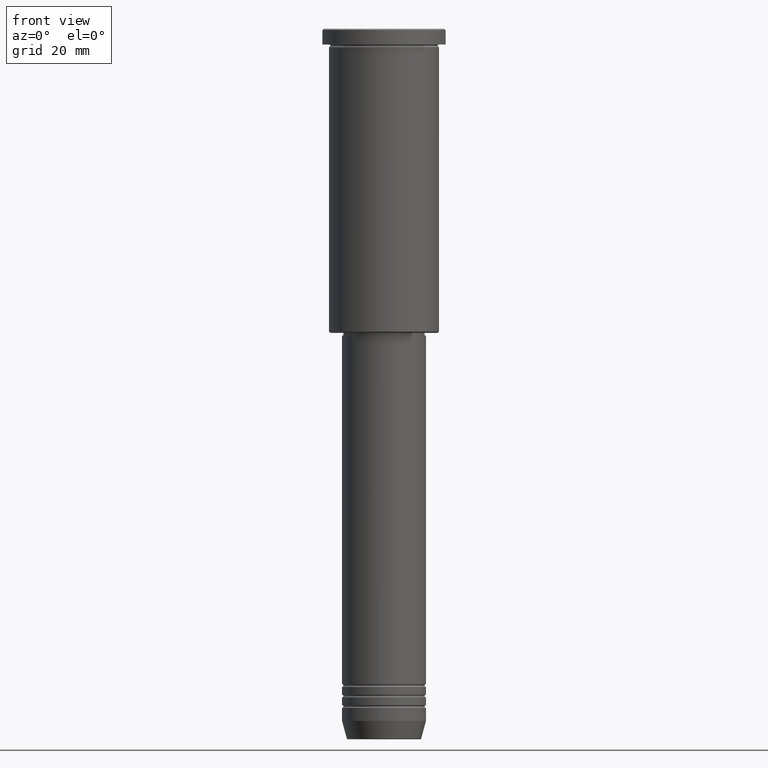
[diagram: clean part render]
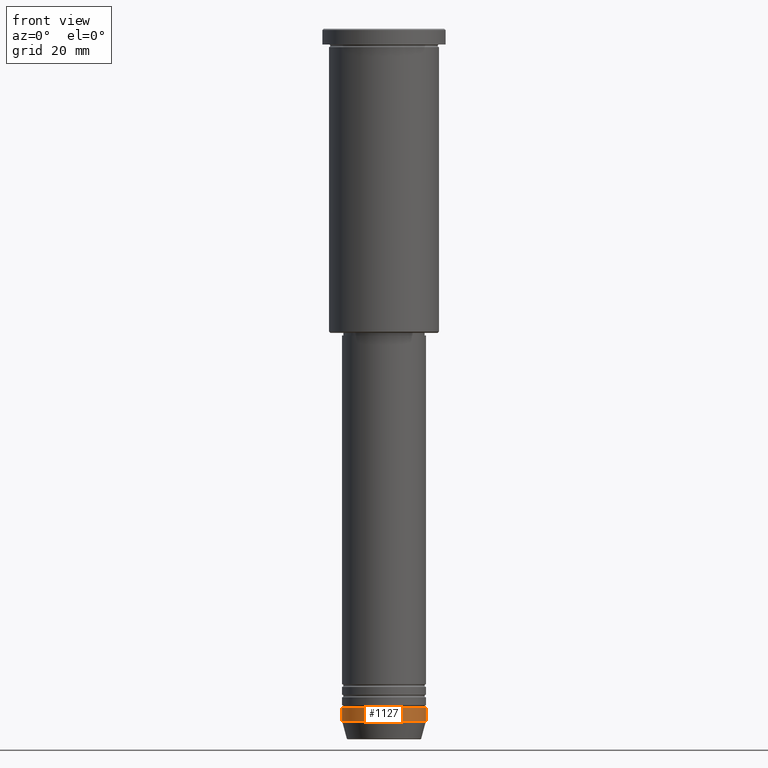
[diagram: same view with one face highlighted and labeled with its STEP entity id]
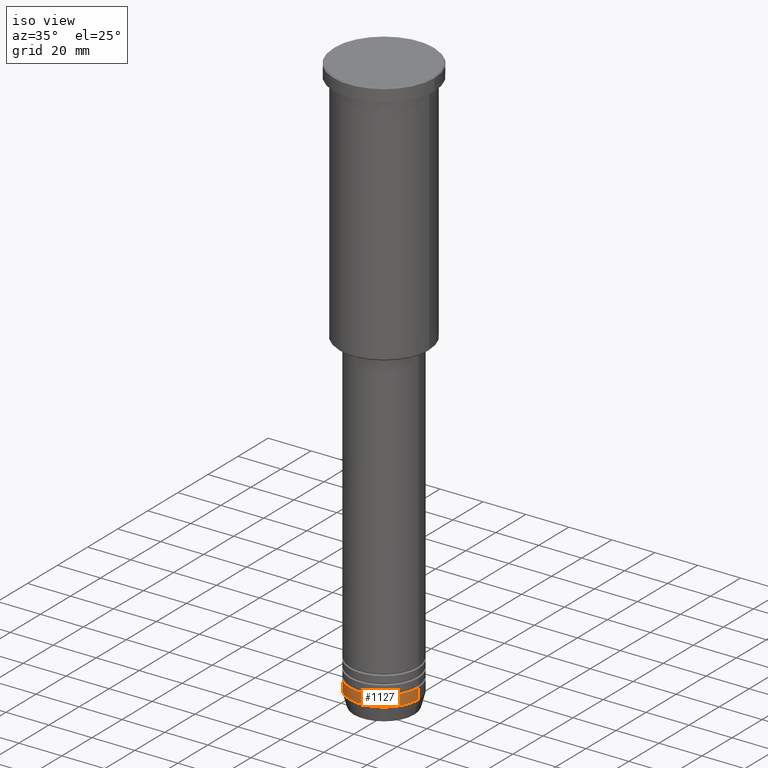
[diagram: same view with one face highlighted and labeled with its STEP entity id]
A machine part, front view. The second image highlights one B-rep face of the part: STEP entity #1127.
A second angle (iso view) of the same face is appended — the face is thin or edge-on in the first view.
In plain terms, the highlighted cylindrical surface (partial cylindrical patch) has radius 16 mm, axis along (-0, -0, 1).
Its self-contained STEP definition (entity closure, byte-faithful):
#5 = AXIS2_PLACEMENT_3D ( 'NONE', #393, #951, #136 ) ;
#66 = CARTESIAN_POINT ( 'NONE',  ( -16.00000000000000000, 1.959434878635765131E-15, 0.000000000000000000 ) ) ;
#100 = CARTESIAN_POINT ( 'NONE',  ( -16.00000000000000000, 1.959434878635765131E-15, -259.0000000000000000 ) ) ;
#136 = DIRECTION ( 'NONE',  ( 1.000000000000000000, 0.000000000000000000, 0.000000000000000000 ) ) ;
#161 = EDGE_CURVE ( 'NONE', #591, #166, #897, .T. ) ;
#163 = VECTOR ( 'NONE', #538, 1000.000000000000000 ) ;
#166 = VERTEX_POINT ( 'NONE', #427 ) ;
#211 = VERTEX_POINT ( 'NONE', #1074 ) ;
#263 = EDGE_CURVE ( 'NONE', #166, #211, #1098, .T. ) ;
#275 = DIRECTION ( 'NONE',  ( -0.000000000000000000, -0.000000000000000000, 1.000000000000000000 ) ) ;
#341 = CARTESIAN_POINT ( 'NONE',  ( 0.000000000000000000, 0.000000000000000000, -264.0000000000000000 ) ) ;
#393 = CARTESIAN_POINT ( 'NONE',  ( 0.000000000000000000, 0.000000000000000000, 0.000000000000000000 ) ) ;
#414 = ORIENTED_EDGE ( 'NONE', *, *, #522, .F. ) ;
#423 = EDGE_LOOP ( 'NONE', ( #414, #1170, #810, #678 ) ) ;
#427 = CARTESIAN_POINT ( 'NONE',  ( 16.00000000000000000, 0.000000000000000000, -264.0000000000000000 ) ) ;
#487 = VECTOR ( 'NONE', #275, 1000.000000000000000 ) ;
#522 = EDGE_CURVE ( 'NONE', #591, #812, #791, .T. ) ;
#538 = DIRECTION ( 'NONE',  ( -0.000000000000000000, -0.000000000000000000, 1.000000000000000000 ) ) ;
#569 = DIRECTION ( 'NONE',  ( -0.000000000000000000, -0.000000000000000000, 1.000000000000000000 ) ) ;
#591 = VERTEX_POINT ( 'NONE', #842 ) ;
#678 = ORIENTED_EDGE ( 'NONE', *, *, #795, .F. ) ;
#692 = DIRECTION ( 'NONE',  ( -0.000000000000000000, -0.000000000000000000, 1.000000000000000000 ) ) ;
#698 = DIRECTION ( 'NONE',  ( 1.000000000000000000, 0.000000000000000000, 0.000000000000000000 ) ) ;
#717 = FACE_OUTER_BOUND ( 'NONE', #423, .T. ) ;
#742 = DIRECTION ( 'NONE',  ( 1.000000000000000000, 0.000000000000000000, 0.000000000000000000 ) ) ;
#747 = CARTESIAN_POINT ( 'NONE',  ( 16.00000000000000000, 0.000000000000000000, 0.000000000000000000 ) ) ;
#791 = LINE ( 'NONE', #66, #163 ) ;
#795 = EDGE_CURVE ( 'NONE', #812, #211, #978, .T. ) ;
#810 = ORIENTED_EDGE ( 'NONE', *, *, #263, .T. ) ;
#812 = VERTEX_POINT ( 'NONE', #100 ) ;
#842 = CARTESIAN_POINT ( 'NONE',  ( -16.00000000000000000, 1.959434878635765131E-15, -264.0000000000000000 ) ) ;
#897 = CIRCLE ( 'NONE', #1126, 16.00000000000000000 ) ;
#951 = DIRECTION ( 'NONE',  ( -0.000000000000000000, -0.000000000000000000, 1.000000000000000000 ) ) ;
#978 = CIRCLE ( 'NONE', #995, 16.00000000000000000 ) ;
#995 = AXIS2_PLACEMENT_3D ( 'NONE', #1019, #569, #742 ) ;
#1019 = CARTESIAN_POINT ( 'NONE',  ( 0.000000000000000000, 0.000000000000000000, -259.0000000000000000 ) ) ;
#1074 = CARTESIAN_POINT ( 'NONE',  ( 16.00000000000000000, 0.000000000000000000, -259.0000000000000000 ) ) ;
#1098 = LINE ( 'NONE', #747, #487 ) ;
#1125 = CYLINDRICAL_SURFACE ( 'NONE', #5, 16.00000000000000000 ) ;
#1126 = AXIS2_PLACEMENT_3D ( 'NONE', #341, #692, #698 ) ;
#1127 = ADVANCED_FACE ( 'NONE', ( #717 ), #1125, .T. ) ;
#1170 = ORIENTED_EDGE ( 'NONE', *, *, #161, .T. ) ;